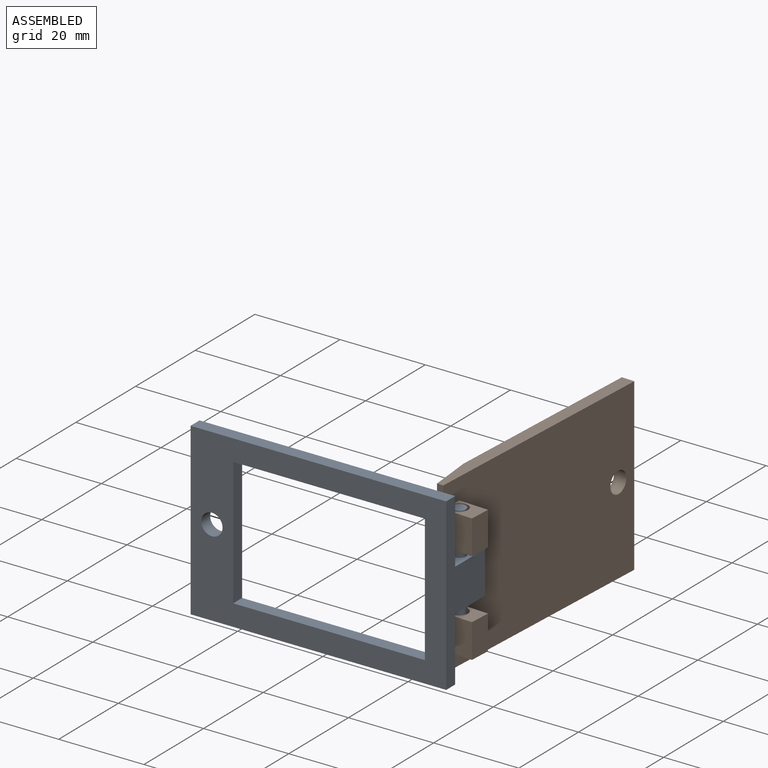
[diagram: assembled view]
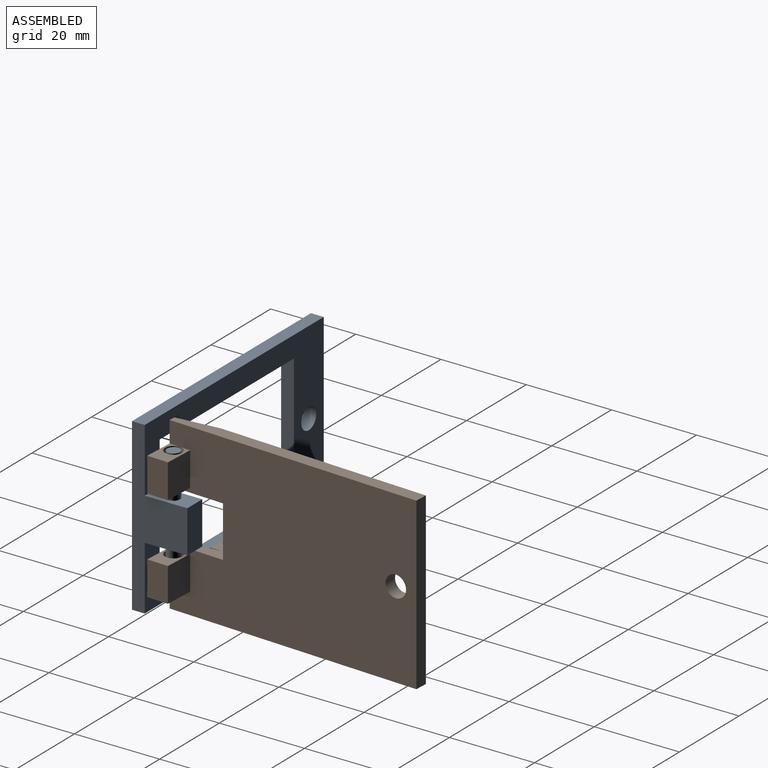
[diagram: assembled view, second angle]
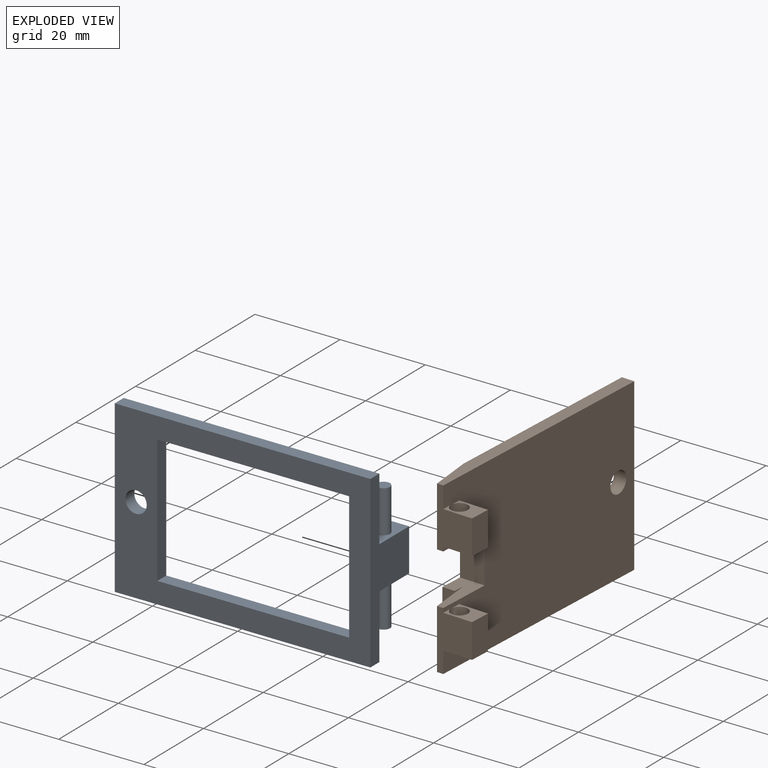
[diagram: exploded view]
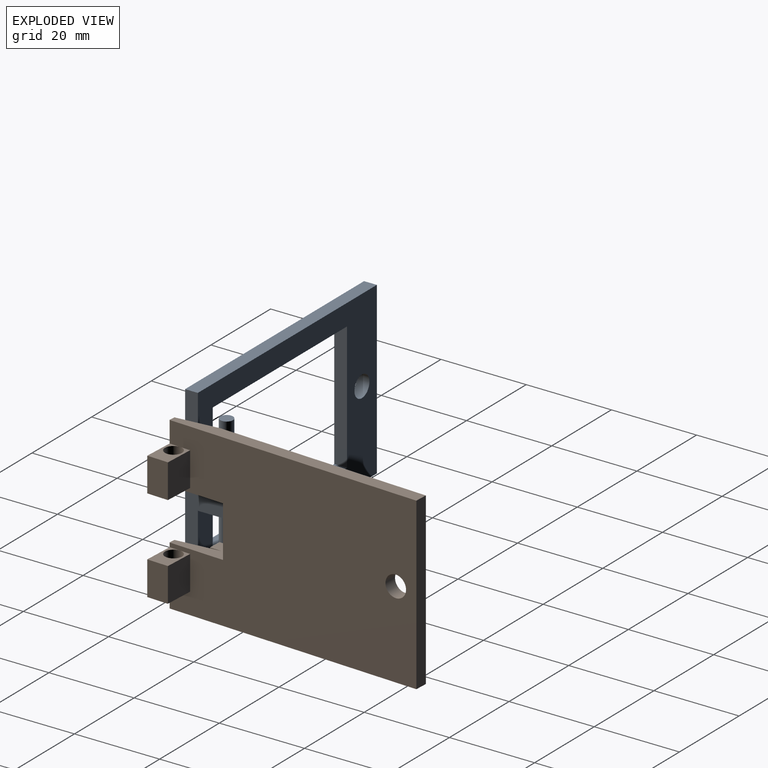
[diagram: exploded view, second angle]
FCSTD DOCUMENT  (FreeCAD 1.0R39285 (Git))
Label: locker_system
License: All rights reserved
objects: Sketcher::SketchObject×12, PartDesign::Pad×6, PartDesign::Pocket×6, App::FeaturePython×3, PartDesign::Body×2, Assembly::JointGroup×1, Assembly::AssemblyObject×1
note: 62 computed .brp shape members not serialized (recipe doc carries the construction recipe); baked Part::Feature solids carry a one-line shape summary decoded from their .brp

FEATURE [Sketcher::SketchObject] Sketch  label="main"
  ArcFitTolerance = 1e-06
  AttachmentSupport = -> [XY_Plane]
  FullyConstrained = true
  MakeInternals = false
  MapMode = 5
  sketch-geometry (5):
    g0: LineSegment StartX=-30 StartY=-1.5 StartZ=0 EndX=30 EndY=-1.5 EndZ=0
    g1: LineSegment StartX=30 StartY=-1.5 StartZ=0 EndX=30 EndY=1.5 EndZ=0
    g2: LineSegment StartX=30 StartY=1.5 StartZ=0 EndX=-30 EndY=1.5 EndZ=0
    g3: LineSegment StartX=-30 StartY=1.5 StartZ=0 EndX=-30 EndY=-1.5 EndZ=0
    g4: GeomPoint [constr] X=0 Y=0 Z=0
  constraints (12):
    c: Coincident(g0,g1)
    c: Coincident(g1,g2)
    c: Coincident(g2,g3)
    c: Coincident(g3,g0)
    c: Horizontal(g0)
    c: Horizontal(g2)
    c: Vertical(g1)
    c: Vertical(g3)
    c: Symmetric(g2,g0,g4)
    c: Distance(g1,g3) = 60
    c: Distance(g0,g2) = 3
    c: Coincident(g4,g-1)
FEATURE [PartDesign::Pad] Pad  label="main_Pad"
  Direction = (0,0,1)
  Length = 40
  Length2 = 10
  Profile = -> Sketch
  ReferenceAxis = -> Sketch [N_Axis]
  Refine = true
  Suppressed = false
  Type = 0
FEATURE [Sketcher::SketchObject] Sketch001
  ArcFitTolerance = 1e-06
  AttachmentSupport = -> [Pad]
  ExternalGeometry = -> [Pad]
  FullyConstrained = true
  MakeInternals = false
  MapMode = 5
  Placement = pos=(0,-1.5,0) rot=(1,0,0;1.5708rad)
  sketch-geometry (5):
    g0: LineSegment StartX=20 StartY=5 StartZ=0 EndX=20 EndY=35 EndZ=0
    g1: LineSegment StartX=20 StartY=35 StartZ=0 EndX=-25 EndY=35 EndZ=0
    g2: LineSegment StartX=-25 StartY=35 StartZ=0 EndX=-25 EndY=5 EndZ=0
    g3: LineSegment StartX=-25 StartY=5 StartZ=0 EndX=20 EndY=5 EndZ=0
    g4: GeomPoint [constr] X=-2.5 Y=20 Z=0
  constraints (13):
    c: Coincident(g0,g1)
    c: Coincident(g1,g2)
    c: Coincident(g2,g3)
    c: Coincident(g3,g0)
    c: Vertical(g0)
    c: Vertical(g2)
    c: Horizontal(g1)
    c: Horizontal(g3)
    c: Symmetric(g2,g0,g4)
    c: Distance(g3,g1) = 30
    c: Distance(g-3,g1) = 5
    c: Distance(g2,g0) = 45
    c: Distance(g-4,g2) = 5
FEATURE [PartDesign::Pocket] Pocket  label="buco quadrato"
  BaseFeature = -> Pad
  Direction = (0,1,-2e-16)
  Length = 5
  Length2 = 5
  Profile = -> Sketch001
  ReferenceAxis = -> Sketch001 [N_Axis]
  Refine = true
  Suppressed = false
  Type = 1
FEATURE [Sketcher::SketchObject] Sketch002
  ArcFitTolerance = 1e-06
  AttachmentSupport = -> [Pocket]
  ExternalGeometry = -> [Pocket]
  FullyConstrained = true
  MakeInternals = false
  MapMode = 5
  Placement = pos=(0,-1.5,0) rot=(1,0,0;1.5708rad)
  sketch-geometry (5):
    g0: LineSegment StartX=-25 StartY=15 StartZ=0 EndX=-25 EndY=25 EndZ=0
    g1: LineSegment StartX=-25 StartY=25 StartZ=0 EndX=-30 EndY=25 EndZ=0
    g2: LineSegment StartX=-30 StartY=25 StartZ=0 EndX=-30 EndY=15 EndZ=0
    g3: LineSegment StartX=-30 StartY=15 StartZ=0 EndX=-25 EndY=15 EndZ=0
    g4: GeomPoint [constr] X=-27.5 Y=20 Z=0
  constraints (13):
    c: Coincident(g0,g1)
    c: Coincident(g1,g2)
    c: Coincident(g2,g3)
    c: Coincident(g3,g0)
    c: Vertical(g0)
    c: Vertical(g2)
    c: Horizontal(g1)
    c: Horizontal(g3)
    c: Symmetric(g2,g0,g4)
    c: PointOnObject(g0,g-4)
    c: PointOnObject(g1,g-3)
    c: DistanceY(g4,g-3) = 20
    c: Distance(g3,g1) = 10
FEATURE [PartDesign::Pad] Pad001  label="base_cardine"
  BaseFeature = -> Pocket
  Direction = (0,-1,2e-16)
  Length = 10
  Length2 = 10
  Profile = -> Sketch002
  ReferenceAxis = -> Sketch002 [N_Axis]
  Refine = true
  Suppressed = false
  Type = 0
FEATURE [Sketcher::SketchObject] Sketch003
  ArcFitTolerance = 1e-06
  AttachmentSupport = -> [Pad001]
  ExternalGeometry = -> [Pad001]
  FullyConstrained = true
  MakeInternals = false
  MapMode = 5
  Placement = pos=(0,5.5e-15,25) rot=(0,0,1;0rad)
  sketch-geometry (1):
    g0: Circle CenterX=-27.5 CenterY=-6.5 CenterZ=0 NormalX=0 NormalY=0 NormalZ=1 AngleXU=0 Radius=1.5
  constraints (3):
    c: Distance(g0,g-5) = 5
    c: Distance(g0,g-4) = 2.5
    c: Diameter(g0) = 3
FEATURE [PartDesign::Pad] Pad002
  BaseFeature = -> Pad001
  Direction = (0,0,1)
  Length = 10
  Length2 = 20
  Profile = -> Sketch003
  ReferenceAxis = -> Sketch003 [N_Axis]
  Refine = true
  Suppressed = false
  Type = 4
FEATURE [Sketcher::SketchObject] Sketch004
  ArcFitTolerance = 1e-06
  AttachmentSupport = -> [Pad002]
  ExternalGeometry = -> [Pad002]
  FullyConstrained = false
  MakeInternals = false
  MapMode = 5
  Placement = pos=(0,-1.5,0) rot=(1,0,0;1.5708rad)
  sketch-geometry (1):
    g0: Circle CenterX=25 CenterY=20.3934 CenterZ=0 NormalX=0 NormalY=0 NormalZ=1 AngleXU=0 Radius=2.5
  constraints (2):
    c: Distance(g0,g-3) = 5
    c: Diameter(g0) = 5
FEATURE [PartDesign::Pocket] Pocket001
  BaseFeature = -> Pad002
  Direction = (0,1,-2e-16)
  Length = 5
  Length2 = 5
  Profile = -> Sketch004
  ReferenceAxis = -> Sketch004 [N_Axis]
  Refine = true
  Suppressed = false
  Type = 1
FEATURE [PartDesign::Body] Body  label="main_block"
  AllowCompound = false
  Group = -> [Sketch,Pad,Sketch001,Pocket,Sketch002,Pad001,Sketch003,Pad002,Sketch004,Pocket001]
  Origin = -> Origin
  Placement = pos=(0,0,0) rot=(0,0,1;3.14159rad)
  Tip = -> Pocket001
FEATURE [Sketcher::SketchObject] Sketch005  label="main001"
  ArcFitTolerance = 1e-06
  AttachmentSupport = -> [XY_Plane001]
  FullyConstrained = true
  MakeInternals = false
  MapMode = 5
  sketch-geometry (5):
    g0: LineSegment StartX=-30 StartY=-1.5 StartZ=0 EndX=30 EndY=-1.5 EndZ=0
    g1: LineSegment StartX=30 StartY=-1.5 StartZ=0 EndX=30 EndY=1.5 EndZ=0
    g2: LineSegment StartX=30 StartY=1.5 StartZ=0 EndX=-30 EndY=1.5 EndZ=0
    g3: LineSegment StartX=-30 StartY=1.5 StartZ=0 EndX=-30 EndY=-1.5 EndZ=0
    g4: GeomPoint [constr] X=0 Y=0 Z=0
  constraints (12):
    c: Coincident(g0,g1)
    c: Coincident(g1,g2)
    c: Coincident(g2,g3)
    c: Coincident(g3,g0)
    c: Horizontal(g0)
    c: Horizontal(g2)
    c: Vertical(g1)
    c: Vertical(g3)
    c: Symmetric(g2,g0,g4)
    c: Distance(g1,g3) = 60
    c: Distance(g0,g2) = 3
    c: Coincident(g4,g-1)
FEATURE [PartDesign::Pad] Pad003  label="main_Pad001"
  Direction = (0,0,1)
  Length = 40
  Length2 = 10
  Profile = -> Sketch005
  ReferenceAxis = -> Sketch005 [N_Axis]
  Refine = true
  Suppressed = false
  Type = 0
FEATURE [Sketcher::SketchObject] Sketch006
  ArcFitTolerance = 1e-06
  AttachmentSupport = -> [Pad003]
  ExternalGeometry = -> [Pad003]
  FullyConstrained = true
  MakeInternals = false
  MapMode = 5
  Placement = pos=(0,-1.5,0) rot=(1,0,0;1.5708rad)
  sketch-geometry (5):
    g0: LineSegment StartX=17.5 StartY=7.5 StartZ=0 EndX=17.5 EndY=32.5 EndZ=0
    g1: LineSegment StartX=17.5 StartY=32.5 StartZ=0 EndX=-22.5 EndY=32.5 EndZ=0
    g2: LineSegment StartX=-22.5 StartY=32.5 StartZ=0 EndX=-22.5 EndY=7.5 EndZ=0
    g3: LineSegment StartX=-22.5 StartY=7.5 StartZ=0 EndX=17.5 EndY=7.5 EndZ=0
    g4: GeomPoint [constr] X=-2.5 Y=20 Z=0
  constraints (13):
    c: Coincident(g0,g1)
    c: Coincident(g1,g2)
    c: Coincident(g2,g3)
    c: Coincident(g3,g0)
    c: Vertical(g0)
    c: Vertical(g2)
    c: Horizontal(g1)
    c: Horizontal(g3)
    c: Symmetric(g2,g0,g4)
    c: Distance(g3,g1) = 25
    c: Distance(g-3,g1) = 7.5
    c: Distance(g2,g0) = 40
    c: Distance(g-4,g2) = 7.5
FEATURE [Sketcher::SketchObject] Sketch009
  ArcFitTolerance = 1e-06
  FullyConstrained = false
  MakeInternals = false
  MapMode = 5
  Placement = pos=(0,-1.5,0) rot=(1,0,0;1.5708rad)
  sketch-geometry (1):
    g0: Circle CenterX=25 CenterY=20.3934 CenterZ=0 NormalX=0 NormalY=0 NormalZ=1 AngleXU=0 Radius=2.5
  constraints (2):
    c: Distance(g0,g-3) = 5
    c: Diameter(g0) = 5
FEATURE [PartDesign::Pocket] Pocket003
  BaseFeature = -> Pad003
  Direction = (0,1,-2e-16)
  Length = 5
  Length2 = 5
  Profile = -> Sketch009
  ReferenceAxis = -> Sketch009 [N_Axis]
  Refine = true
  Suppressed = false
  Type = 1
FEATURE [PartDesign::Pad] Pad004
  BaseFeature = -> Pocket003
  Direction = (0,-1,2e-16)
  Length = 6
  Length2 = 10
  Profile = -> Sketch006
  ReferenceAxis = -> Sketch006 [N_Axis]
  Refine = true
  Reversed = true
  Suppressed = false
  Type = 0
FEATURE [Sketcher::SketchObject] Sketch010
  ArcFitTolerance = 1e-06
  AttachmentSupport = -> [Pad004]
  ExternalGeometry = -> [Pad004]
  FullyConstrained = true
  MakeInternals = false
  MapMode = 5
  Placement = pos=(0,-1.5,0) rot=(1,0,0;1.5708rad)
  sketch-geometry (13):
    g0: LineSegment [constr] StartX=-25 StartY=13 StartZ=0 EndX=-25 EndY=27 EndZ=0
    g1: LineSegment [constr] StartX=-25 StartY=27 StartZ=0 EndX=-30 EndY=27 EndZ=0
    g2: LineSegment [constr] StartX=-30 StartY=27 StartZ=0 EndX=-30 EndY=13 EndZ=0
    g3: LineSegment [constr] StartX=-30 StartY=13 StartZ=0 EndX=-25 EndY=13 EndZ=0
    g4: GeomPoint [constr] X=-27.5 Y=20 Z=0
    g5: LineSegment StartX=-30 StartY=27 StartZ=0 EndX=-25 EndY=27 EndZ=0
    g6: LineSegment StartX=-25 StartY=27 StartZ=0 EndX=-25 EndY=35 EndZ=0
    g7: LineSegment StartX=-25 StartY=35 StartZ=0 EndX=-30 EndY=35 EndZ=0
    g8: LineSegment StartX=-30 StartY=35 StartZ=0 EndX=-30 EndY=27 EndZ=0
    g9: LineSegment StartX=-30 StartY=13 StartZ=0 EndX=-30 EndY=5 EndZ=0
    g10: LineSegment StartX=-30 StartY=5 StartZ=0 EndX=-25 EndY=5 EndZ=0
    g11: LineSegment StartX=-25 StartY=5 StartZ=0 EndX=-25 EndY=13 EndZ=0
    g12: LineSegment StartX=-25 StartY=13 StartZ=0 EndX=-30 EndY=13 EndZ=0
  constraints (35):
    c: Coincident(g0,g1)
    c: Coincident(g1,g2)
    c: Coincident(g2,g3)
    c: Coincident(g3,g0)
    c: Vertical(g0)
    c: Vertical(g2)
    c: Horizontal(g1)
    c: Horizontal(g3)
    c: Symmetric(g2,g0,g4)
    c: Distance(g2,g2) = 14
    c: Distance(g1,g1) = 5
    c: PointOnObject(g1,g-3)
    c: DistanceY(g4,g-3) = 20
    c: Coincident(g5,g6)
    c: Coincident(g6,g7)
    c: Coincident(g7,g8)
    c: Coincident(g8,g5)
    c: Horizontal(g5)
    c: Horizontal(g7)
    c: Vertical(g6)
    c: Vertical(g8)
    c: Distance(g6,g8) = 5
    c: Distance(g5,g7) = 8
    c: Coincident(g5,g1)
    c: Coincident(g9,g10)
    c: Coincident(g10,g11)
    c: Coincident(g11,g12)
    c: Coincident(g12,g9)
    c: Vertical(g9)
    c: Vertical(g11)
    c: Horizontal(g10)
    c: Horizontal(g12)
    c: Distance(g9,g11) = 5
    c: Distance(g10,g12) = 8
    c: Coincident(g9,g2)
FEATURE [PartDesign::Pad] Pad005
  BaseFeature = -> Pad004
  Direction = (0,-1,2e-16)
  Length = 7
  Length2 = 10
  Profile = -> Sketch010
  ReferenceAxis = -> Sketch010 [N_Axis]
  Refine = true
  Suppressed = false
  Type = 0
FEATURE [Sketcher::SketchObject] Sketch011
  ArcFitTolerance = 1e-06
  AttachmentSupport = -> [Pad005]
  ExternalGeometry = -> [Pad005]
  FullyConstrained = true
  MakeInternals = false
  MapMode = 5
  Placement = pos=(0,7.7e-15,35) rot=(0,0,1;0rad)
  sketch-geometry (1):
    g0: Circle CenterX=-27.5 CenterY=-3.5 CenterZ=0 NormalX=0 NormalY=0 NormalZ=1 AngleXU=0 Radius=2
  constraints (3):
    c: Distance(g0,g-4) = 5
    c: Distance(g0,g-3) = 2.5
    c: Diameter(g0) = 4
FEATURE [PartDesign::Pocket] Pocket004
  BaseFeature = -> Pad005
  Direction = (0,0,-1)
  Length = 5
  Length2 = 5
  Profile = -> Sketch011
  ReferenceAxis = -> Sketch011 [N_Axis]
  Refine = true
  Suppressed = false
  Type = 1
FEATURE [Sketcher::SketchObject] Sketch012
  ArcFitTolerance = 1e-06
  AttachmentSupport = -> [Pocket004]
  ExternalGeometry = -> [Pocket004]
  FullyConstrained = true
  MakeInternals = false
  MapMode = 5
  Placement = pos=(0,0,40) rot=(0,0,1;0rad)
  sketch-geometry (3):
    g0: LineSegment StartX=-30 StartY=1.5 StartZ=0 EndX=-19.8 EndY=1.5 EndZ=0
    g1: LineSegment StartX=-30 StartY=1.5 StartZ=0 EndX=-30 EndY=0 EndZ=0
    g2: LineSegment StartX=-19.8 StartY=1.5 StartZ=0 EndX=-30 EndY=0 EndZ=0
  constraints (7):
    c: Coincident(g0,g-4)
    c: PointOnObject(g0,g-3)
    c: Coincident(g1,g0)
    c: Symmetric(g-4,g-4,g1)
    c: Coincident(g2,g0)
    c: Coincident(g2,g1)
    c: DistanceX(g0,g0) = 10.2
FEATURE [PartDesign::Pocket] Pocket005
  BaseFeature = -> Pocket004
  Direction = (0,0,-1)
  Length = 5
  Length2 = 5
  Profile = -> Sketch012
  ReferenceAxis = -> Sketch012 [N_Axis]
  Refine = true
  Suppressed = false
  Type = 1
FEATURE [App::FeaturePython] GroundedJoint  # Assembly grounded joint (typed FeaturePython)
  ObjectToGround = -> Body
  Placement = pos=(0,0,0) rot=(0,0,1;3.14159rad)
FEATURE [Sketcher::SketchObject] Sketch013
  ArcFitTolerance = 1e-06
  AttachmentSupport = -> [Pocket005]
  ExternalGeometry = -> [Pocket005]
  FullyConstrained = true
  MakeInternals = false
  MapMode = 5
  Placement = pos=(0,-1.5,0) rot=(1,0,0;1.5708rad)
  sketch-geometry (4):
    g0: LineSegment StartX=-30 StartY=26 StartZ=0 EndX=-30 EndY=14 EndZ=0
    g1: LineSegment StartX=-30 StartY=14 StartZ=0 EndX=-17 EndY=14 EndZ=0
    g2: LineSegment StartX=-17 StartY=14 StartZ=0 EndX=-17 EndY=26 EndZ=0
    g3: LineSegment StartX=-17 StartY=26 StartZ=0 EndX=-30 EndY=26 EndZ=0
  constraints (12):
    c: Coincident(g0,g1)
    c: Coincident(g1,g2)
    c: Coincident(g2,g3)
    c: Coincident(g3,g0)
    c: Vertical(g0)
    c: Vertical(g2)
    c: Horizontal(g1)
    c: Horizontal(g3)
    c: PointOnObject(g0,g-4)
    c: Distance(g-3,g3) = 14
    c: Distance(g1,g-1) = 14
    c: Distance(g0,g2) = 13
FEATURE [PartDesign::Pocket] Pocket006
  BaseFeature = -> Pocket005
  Direction = (0,1,-2e-16)
  Length = 5
  Length2 = 5
  Profile = -> Sketch013
  ReferenceAxis = -> Sketch013 [N_Axis]
  Refine = true
  Suppressed = false
  Type = 1
FEATURE [PartDesign::Body] Body001  label="second_block"
  AllowCompound = false
  Group = -> [Sketch005,Pad003,Sketch006,Sketch009,Pocket003,Pad004,Sketch010,Pad005,Sketch011,Pocket004,Sketch012,Pocket005,Sketch013,Pocket006]
  Origin = -> Origin001
  Placement = pos=(25.325,34.1364,-1.09e-14) rot=(0,0,1;1.52274rad)
  Tip = -> Pocket006
FEATURE [App::FeaturePython] Joint  label="Distance"  # Assembly joint (typed FeaturePython)
  Activated = true
  AngleMax = 0
  AngleMin = 0
  Detach1 = false
  Detach2 = false
  Distance = 0
  Distance2 = 0
  EnableAngleMax = false
  EnableAngleMin = false
  EnableLengthMax = false
  EnableLengthMin = false
  JointType = 5 (Distance)
  LengthMax = 0
  LengthMin = 0
  Placement1 = pos=(1.18068,-0.0443864,40) rot=(0,0,1;0rad)
  Placement2 = pos=(-4e-16,1e-16,40) rot=(0,0,1;0rad)
  Reference1 = -> Assembly [Body001.Pocket006.Face2,Body001.Pocket006.Face2]
  Reference2 = -> Assembly [Body.Pocket001.Face6,Body.Pocket001.Face6]
FEATURE [App::FeaturePython] Joint001  label="Cylindrical"  # Assembly joint (typed FeaturePython)
  Activated = true
  AngleMax = 0
  AngleMin = 0
  Detach1 = false
  Detach2 = false
  Distance = 0
  Distance2 = 0
  EnableAngleMax = false
  EnableAngleMin = false
  EnableLengthMax = false
  EnableLengthMin = false
  JointType = 2 (Cylindrical)
  LengthMax = 0
  LengthMin = 0
  Placement1 = pos=(-27.5,-3.5,31) rot=(0,0,1;0rad)
  Placement2 = pos=(-27.5,-6.5,30) rot=(0,0,1;0rad)
  Reference1 = -> Assembly [Body001.Pocket006.Face20,Body001.Pocket006.Face20]
  Reference2 = -> Assembly [Body.Pocket001.Face16,Body.Pocket001.Face16]
FEATURE [Assembly::JointGroup] Joints
  Group = -> [GroundedJoint,Joint,Joint001]
FEATURE [Assembly::AssemblyObject] Assembly
  Group = -> [Joints,Body001,Body,GroundedJoint,Joint,Joint001]
  Origin = -> Origin002
  Type = locker_assembled
